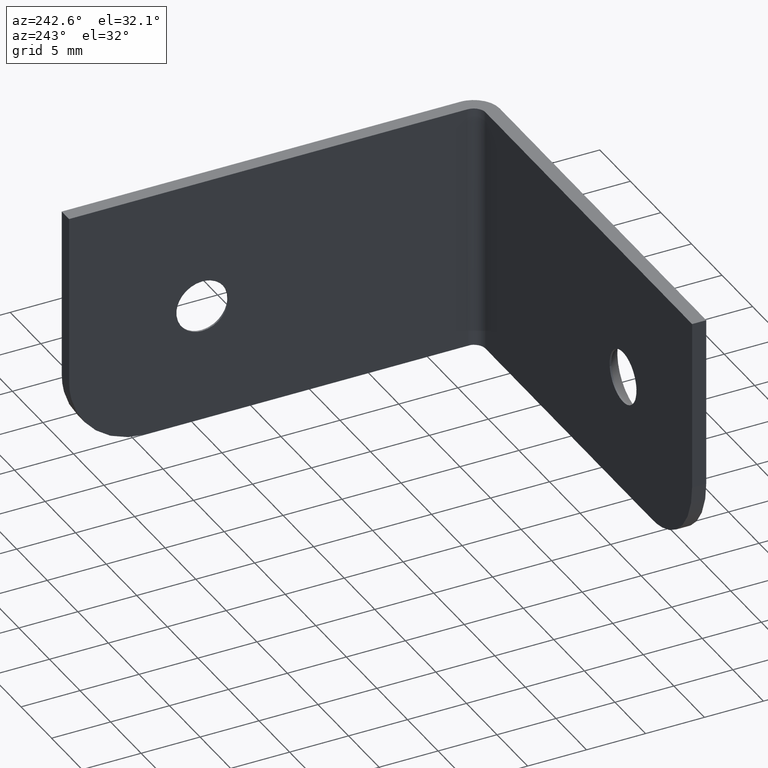
[diagram: clean part render]
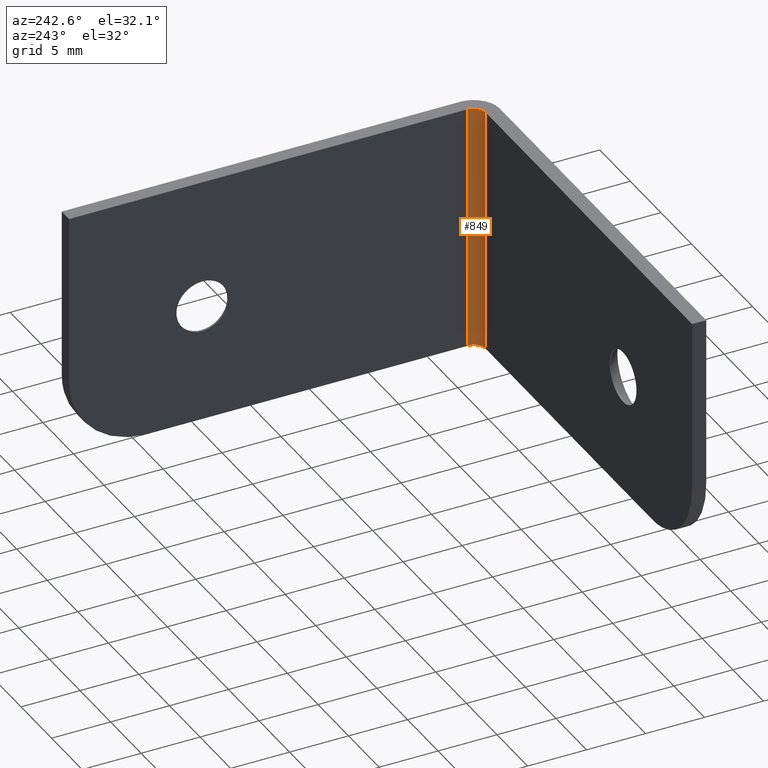
[diagram: same view with one face highlighted and labeled with its STEP entity id]
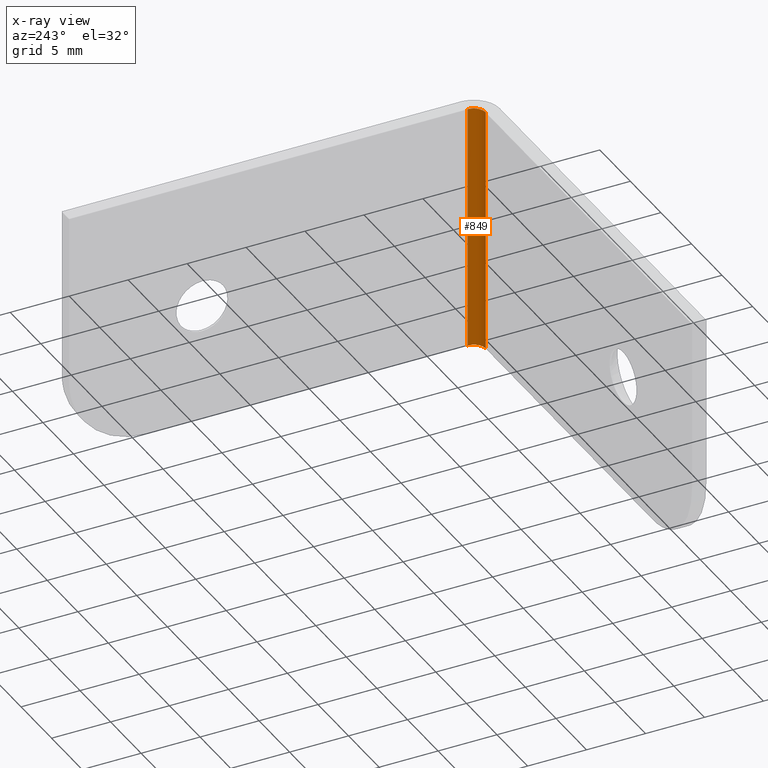
[diagram: x-ray of the same camera — body ghosted, the highlighted face saturated]
A machine part, auxiliary view. The second image highlights one B-rep face of the part: STEP entity #849.
The next image is the same camera in x-ray: the body ghosted, the highlighted face saturated — about 0% of this face is hidden behind the body in this view.
In plain terms, the highlighted face is a freeform B-spline surface patch.
Its self-contained STEP definition (entity closure, byte-faithful):
#789=CARTESIAN_POINT('',(-1.200342675024443,2.226176948307779,-0.525000000000001));
#790=CARTESIAN_POINT('',(-1.200342675024443,2.226176948307779,21.538125000000001));
#791=CARTESIAN_POINT('',(-1.171507737056984,1.125015093405229,-0.525000000000000));
#792=CARTESIAN_POINT('',(-1.171507737056984,1.125015093405229,21.538125000000001));
#793=CARTESIAN_POINT('',(-2.270320171238389,1.202475527359256,-0.525000000000001));
#794=CARTESIAN_POINT('',(-2.270320171238389,1.202475527359256,21.538125000000001));
#802=(BOUNDED_SURFACE()B_SPLINE_SURFACE(1,2,((#789,#791,#793),(#790,#792,#794)),.UNSPECIFIED.,.F.,.F.,.U.)B_SPLINE_SURFACE_WITH_KNOTS((2,2),(3,3),(0.0,22.063125000000010),(0.0,0.994518696590792),.UNSPECIFIED.)GEOMETRIC_REPRESENTATION_ITEM()RATIONAL_B_SPLINE_SURFACE(((1.0,0.670944201894226,0.996392690664047),(1.0,0.670944201894226,0.996392690664047)))REPRESENTATION_ITEM('')SURFACE());
#803=CARTESIAN_POINT('',(-2.200000000000000,1.199999999999902,0.0));
#804=VERTEX_POINT('',#803);
#805=CARTESIAN_POINT('',(-1.200000000000000,2.199999999999905,1.347067E-016));
#806=VERTEX_POINT('',#805);
#807=CARTESIAN_POINT('',(-2.200000000000000,1.199999999999905,0.0));
#808=CARTESIAN_POINT('',(-1.200000000000000,1.199999999999905,0.0));
#809=CARTESIAN_POINT('',(-1.200000000000000,2.199999999999905,0.0));
#817=(BOUNDED_CURVE()B_SPLINE_CURVE(2,(#807,#808,#809),.UNSPECIFIED.,.F.,.U.)CURVE()GEOMETRIC_REPRESENTATION_ITEM()QUASI_UNIFORM_CURVE()RATIONAL_B_SPLINE_CURVE((1.0,0.707106781186548,1.0))REPRESENTATION_ITEM(''));
#818=EDGE_CURVE('',#804,#806,#817,.T.);
#819=ORIENTED_EDGE('',*,*,#818,.F.);
#820=CARTESIAN_POINT('',(-2.200000000000000,1.199999999999902,21.0));
#821=VERTEX_POINT('',#820);
#822=CARTESIAN_POINT('',(-2.200000000000000,1.199999999999902,21.0));
#823=CARTESIAN_POINT('',(-2.200000000000000,1.199999999999902,0.0));
#824=QUASI_UNIFORM_CURVE('',1,(#822,#823),.UNSPECIFIED.,.F.,.U.);
#825=EDGE_CURVE('',#821,#804,#824,.T.);
#826=ORIENTED_EDGE('',*,*,#825,.F.);
#827=CARTESIAN_POINT('',(-1.200000000000000,2.199999999999905,21.0));
#828=VERTEX_POINT('',#827);
#829=CARTESIAN_POINT('',(-1.200000000000000,2.199999999999905,21.0));
#830=CARTESIAN_POINT('',(-1.200000000000000,1.199999999999905,21.000000000000004));
#831=CARTESIAN_POINT('',(-2.200000000000000,1.199999999999905,21.0));
#839=(BOUNDED_CURVE()B_SPLINE_CURVE(2,(#829,#830,#831),.UNSPECIFIED.,.F.,.U.)CURVE()GEOMETRIC_REPRESENTATION_ITEM()QUASI_UNIFORM_CURVE()RATIONAL_B_SPLINE_CURVE((1.0,0.707106781186548,1.0))REPRESENTATION_ITEM(''));
#840=EDGE_CURVE('',#828,#821,#839,.T.);
#841=ORIENTED_EDGE('',*,*,#840,.F.);
#842=CARTESIAN_POINT('',(-1.200000000000000,2.199999999999905,1.347067E-016));
#843=CARTESIAN_POINT('',(-1.200000000000000,2.199999999999905,21.0));
#844=QUASI_UNIFORM_CURVE('',1,(#842,#843),.UNSPECIFIED.,.F.,.U.);
#845=EDGE_CURVE('',#806,#828,#844,.T.);
#846=ORIENTED_EDGE('',*,*,#845,.F.);
#847=EDGE_LOOP('',(#819,#826,#841,#846));
#848=FACE_OUTER_BOUND('',#847,.T.);
#849=ADVANCED_FACE('',(#848),#802,.F.);